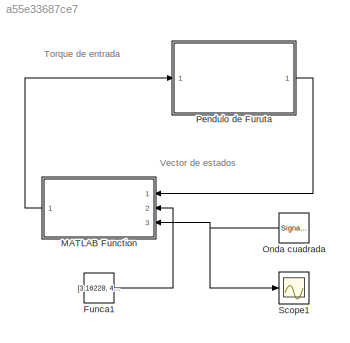
MODEL slx_a55e33687ce7
KIND model
CONFIG AbsTol = auto
CONFIG EnableMultiTasking = on
CONFIG FixedStep = auto
CONFIG MaxStep = auto
CONFIG MinStep = auto
CONFIG RelTol = 1e-3
CONFIG SampleTimeConstraint = Unconstrained
CONFIG SolverName = VariableStepAuto
CONFIG StartTime = 0.0
CONFIG StopTime = 100
BLOCK [Constant] Funca1
  Value = [3.16228, 4.03161, 148.669, 24.7138, 193.849, 25.8739]
  VectorParams1D = off
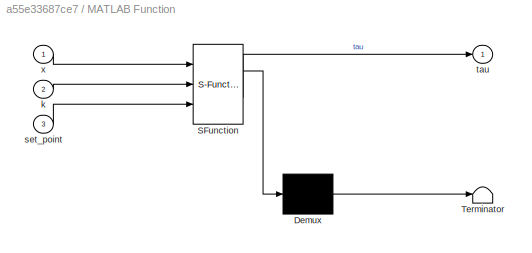
BLOCK [SubSystem] MATLAB Function
  ErrorFcn = Stateflow.Translate.translate
  PermitHierarchicalResolution = ExplicitOnly
  Ports = [3, 1]
  RequestExecContextInheritance = off
  SFBlockType = MATLAB Function
  TreatAsAtomicUnit = on
BLOCK [Demux] MATLAB Function/ Demux 
  Outputs = 1
  Ports = [1, 1]
BLOCK [S-Function] MATLAB Function/ SFunction 
  EnableBusSupport = on
  FunctionName = sf_sfun
  PortCounts = [3 2]
  Ports = [3, 2]
  SFcnIsStateOwnerBlock = off
  SFunctionDeploymentMode = off
  Tag = Stateflow S-Function 2
BLOCK [Terminator] MATLAB Function/ Terminator 
BLOCK [Inport] MATLAB Function/k
  Port = 2
BLOCK [Inport] MATLAB Function/set_point
  Port = 3
BLOCK [Outport] MATLAB Function/tau
BLOCK [Inport] MATLAB Function/x
BLOCK [SignalGenerator] Onda cuadrada
  Amplitude = 45
  Frequency = 0.2
  Ports = [0, 1]
  Units = rad/sec
  WaveForm = square
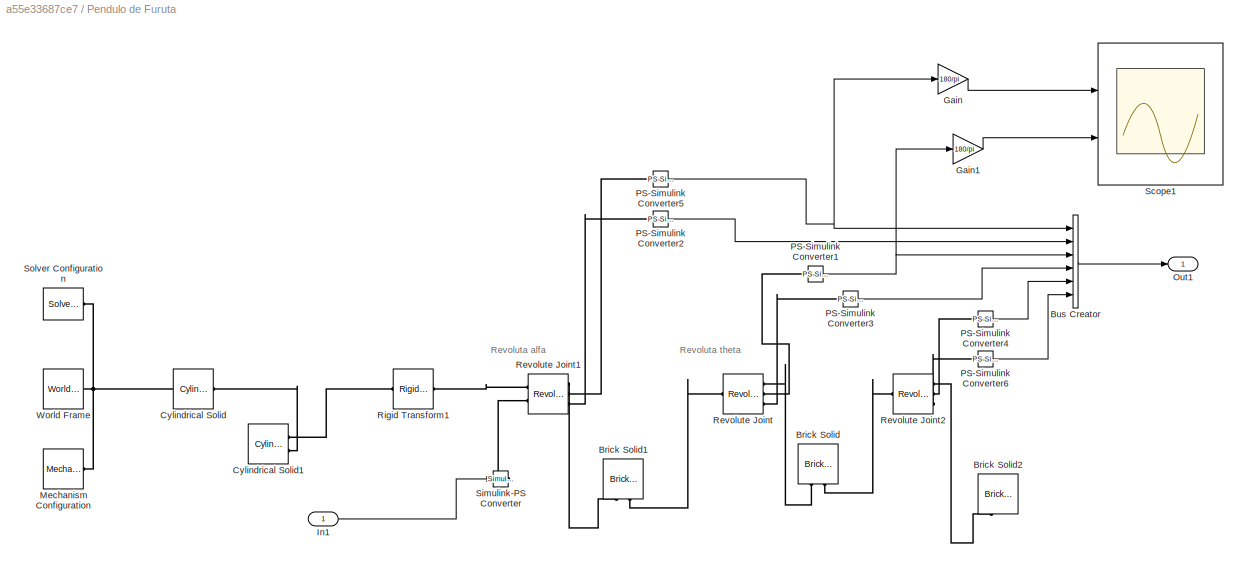
BLOCK [SubSystem] Pendulo de Furuta
  Ports = [1, 1]
  RequestExecContextInheritance = off
BLOCK [Reference] Pendulo de Furuta/Brick Solid  REF=sm_lib/Body Elements/Brick Solid
  Ports = [0, 0, 0, 0, 0, 2, 1]
  SourceBlock = sm_lib/Body Elements/Brick Solid
  SourceProductBaseCode = MS
  SourceType = Brick Solid
BLOCK [Reference] Pendulo de Furuta/Brick Solid1  REF=sm_lib/Body Elements/Brick Solid
  Ports = [0, 0, 0, 0, 0, 2, 1]
  SourceBlock = sm_lib/Body Elements/Brick Solid
  SourceProductBaseCode = MS
  SourceType = Brick Solid
BLOCK [Reference] Pendulo de Furuta/Brick Solid2  REF=sm_lib/Body Elements/Brick Solid
  Ports = [0, 0, 0, 0, 0, 2, 1]
  SourceBlock = sm_lib/Body Elements/Brick Solid
  SourceProductBaseCode = MS
  SourceType = Brick Solid
BLOCK [BusCreator] Pendulo de Furuta/Bus Creator
  DisplayOption = bar
  InheritFromInputs = on
  Inputs = 6
  Ports = [6, 1]
BLOCK [Reference] Pendulo de Furuta/Cylindrical Solid  REF=sm_lib/Body Elements/Cylindrical Solid
  Ports = [0, 0, 0, 0, 0, 1, 1]
  SourceBlock = sm_lib/Body Elements/Cylindrical Solid
  SourceProductBaseCode = MS
  SourceType = Cylindrical Solid
BLOCK [Reference] Pendulo de Furuta/Cylindrical Solid1  REF=sm_lib/Body Elements/Cylindrical Solid
  Ports = [0, 0, 0, 0, 0, 2, 1]
  SourceBlock = sm_lib/Body Elements/Cylindrical Solid
  SourceProductBaseCode = MS
  SourceType = Cylindrical Solid
BLOCK [Gain] Pendulo de Furuta/Gain
  Gain = 180/pi
BLOCK [Gain] Pendulo de Furuta/Gain1
  Gain = 180/pi
BLOCK [Inport] Pendulo de Furuta/In1
BLOCK [Reference] Pendulo de Furuta/Mechanism Configuration  REF=sm_lib/Utilities/Mechanism
Configuration
  Ports = [0, 0, 0, 0, 0, 0, 1]
  SourceBlock = sm_lib/Utilities/Mechanism\nConfiguration
  SourceProductBaseCode = MS
  SourceType = Mechanism\nConfiguration
BLOCK [Outport] Pendulo de Furuta/Out1
BLOCK [Reference] Pendulo de Furuta/PS-Simulink Converter1  REF=nesl_utility/PS-Simulink
Converter
  Ports = [0, 1, 0, 0, 0, 1]
  SourceBlock = nesl_utility/PS-Simulink\nConverter
  SourceProductBaseCode = PW,SS
  SourceType = PS-Simulink\nConverter
BLOCK [Reference] Pendulo de Furuta/PS-Simulink Converter2  REF=nesl_utility/PS-Simulink
Converter
  Ports = [0, 1, 0, 0, 0, 1]
  SourceBlock = nesl_utility/PS-Simulink\nConverter
  SourceProductBaseCode = PW,SS
  SourceType = PS-Simulink\nConverter
BLOCK [Reference] Pendulo de Furuta/PS-Simulink Converter3  REF=nesl_utility/PS-Simulink
Converter
  Ports = [0, 1, 0, 0, 0, 1]
  SourceBlock = nesl_utility/PS-Simulink\nConverter
  SourceProductBaseCode = PW,SS
  SourceType = PS-Simulink\nConverter
BLOCK [Reference] Pendulo de Furuta/PS-Simulink Converter4  REF=nesl_utility/PS-Simulink
Converter
  Ports = [0, 1, 0, 0, 0, 1]
  SourceBlock = nesl_utility/PS-Simulink\nConverter
  SourceProductBaseCode = PW,SS
  SourceType = PS-Simulink\nConverter
BLOCK [Reference] Pendulo de Furuta/PS-Simulink Converter5  REF=nesl_utility/PS-Simulink
Converter
  Ports = [0, 1, 0, 0, 0, 1]
  SourceBlock = nesl_utility/PS-Simulink\nConverter
  SourceProductBaseCode = PW,SS
  SourceType = PS-Simulink\nConverter
BLOCK [Reference] Pendulo de Furuta/PS-Simulink Converter6  REF=nesl_utility/PS-Simulink
Converter
  Ports = [0, 1, 0, 0, 0, 1]
  SourceBlock = nesl_utility/PS-Simulink\nConverter
  SourceProductBaseCode = PW,SS
  SourceType = PS-Simulink\nConverter
BLOCK [Reference] Pendulo de Furuta/Revolute Joint  REF=sm_lib/Joints/Revolute Joint
  Ports = [0, 0, 0, 0, 0, 1, 3]
  SourceBlock = sm_lib/Joints/Revolute Joint
  SourceProductBaseCode = MS
  SourceType = Revolute Joint
BLOCK [Reference] Pendulo de Furuta/Revolute Joint1  REF=sm_lib/Joints/Revolute Joint
  Ports = [0, 0, 0, 0, 0, 2, 3]
  SourceBlock = sm_lib/Joints/Revolute Joint
  SourceProductBaseCode = MS
  SourceType = Revolute Joint
BLOCK [Reference] Pendulo de Furuta/Revolute Joint2  REF=sm_lib/Joints/Revolute Joint
  Ports = [0, 0, 0, 0, 0, 1, 3]
  SourceBlock = sm_lib/Joints/Revolute Joint
  SourceProductBaseCode = MS
  SourceType = Revolute Joint
BLOCK [Reference] Pendulo de Furuta/Rigid Transform1  REF=sm_lib/Frames and
Transforms/Rigid
Transform
  Ports = [0, 0, 0, 0, 0, 1, 1]
  SourceBlock = sm_lib/Frames and\nTransforms/Rigid\nTransform
  SourceProductBaseCode = MS
  SourceType = Rigid\nTransform
BLOCK [Scope] Pendulo de Furuta/Scope1
  Floating = off
  NumInputPorts = 2
  Ports = [2]
  ScopeSpecificationString = Simulink.scopes.TimeScopeBlockCfg('CurrentConfiguration', extmgr.ConfigurationSet(extmgr.Configuration('Core','General UI',true),extmgr.Configuration('Core','Source UI',true),extmgr.Configuration('Sources','WiredSimulink',true,'DataLoggingVariableName','ScopeData2'),extmgr.Configuration('Visuals','Time Domain',true,'SerializedDisplays',{struct('MinYLimReal','-68.85103','MaxYLimReal','68.85101','YL...<+1866ch>
BLOCK [Reference] Pendulo de Furuta/Simulink-PS Converter  REF=nesl_utility/Simulink-PS
Converter
  Ports = [1, 0, 0, 0, 0, 0, 1]
  SourceBlock = nesl_utility/Simulink-PS\nConverter
  SourceProductBaseCode = PW,SS
  SourceType = Simulink-PS\nConverter
BLOCK [Reference] Pendulo de Furuta/Solver Configuration  REF=nesl_utility/Solver
Configuration
  Ports = [0, 0, 0, 0, 0, 0, 1]
  SourceBlock = nesl_utility/Solver\nConfiguration
  SourceProductBaseCode = PW,SS
  SourceType = Solver\nConfiguration
BLOCK [Reference] Pendulo de Furuta/World Frame  REF=sm_lib/Frames and
Transforms/World Frame
  Ports = [0, 0, 0, 0, 0, 0, 1]
  SourceBlock = sm_lib/Frames and\nTransforms/World Frame
  SourceProductBaseCode = MS
  SourceType = World Frame
BLOCK [Scope] Scope1
  Floating = off
  NumInputPorts = 1
  Ports = [1]
  ScopeSpecificationString = Simulink.scopes.TimeScopeBlockCfg('CurrentConfiguration', extmgr.ConfigurationSet(extmgr.Configuration('Core','General UI',true),extmgr.Configuration('Core','Source UI',true),extmgr.Configuration('Sources','WiredSimulink',true,'DataLoggingVariableName','ScopeData1'),extmgr.Configuration('Visuals','Time Domain',true,'SerializedDisplays',{struct('MinYLimReal','-56.25','MaxYLimReal','56.25','YLabelRe...<+1360ch>
ANNOTATION (root): Torque de entrada
ANNOTATION (root): Vector de estados
ANNOTATION Pendulo de Furuta: Revoluta alfa
ANNOTATION Pendulo de Furuta: Revoluta theta
LINE Funca1:1 -> MATLAB Function:2
LINE MATLAB Function:1 -> Pendulo de Furuta:1
NET Onda cuadrada:1 -> MATLAB Function:3, Scope1:1
LINE Pendulo de Furuta/Bus Creator:1 -> Pendulo de Furuta/Out1:1
LINE Pendulo de Furuta/Gain1:1 -> Pendulo de Furuta/Scope1:2
LINE Pendulo de Furuta/Gain:1 -> Pendulo de Furuta/Scope1:1
LINE Pendulo de Furuta/In1:1 -> Pendulo de Furuta/Simulink-PS Converter:1
NET Pendulo de Furuta/PS-Simulink Converter1:1 -> Pendulo de Furuta/Bus Creator:3, Pendulo de Furuta/Gain1:1
LINE Pendulo de Furuta/PS-Simulink Converter2:1 -> Pendulo de Furuta/Bus Creator:2
LINE Pendulo de Furuta/PS-Simulink Converter3:1 -> Pendulo de Furuta/Bus Creator:4
LINE Pendulo de Furuta/PS-Simulink Converter4:1 -> Pendulo de Furuta/Bus Creator:5
NET Pendulo de Furuta/PS-Simulink Converter5:1 -> Pendulo de Furuta/Bus Creator:1, Pendulo de Furuta/Gain:1
LINE Pendulo de Furuta/PS-Simulink Converter6:1 -> Pendulo de Furuta/Bus Creator:6
LINE Pendulo de Furuta:1 -> MATLAB Function:1
PLINE Pendulo de Furuta/Brick Solid1:LConn1 -- Pendulo de Furuta/Revolute Joint1:RConn1
PLINE Pendulo de Furuta/Brick Solid1:LConn2 -- Pendulo de Furuta/Revolute Joint:LConn1
PLINE Pendulo de Furuta/Brick Solid2:LConn1 -- Pendulo de Furuta/Revolute Joint2:RConn1
PLINE Pendulo de Furuta/Brick Solid:LConn1 -- Pendulo de Furuta/Revolute Joint:RConn1
PLINE Pendulo de Furuta/Brick Solid:LConn2 -- Pendulo de Furuta/Revolute Joint2:LConn1
PLINE Pendulo de Furuta/Cylindrical Solid1:LConn1 -- Pendulo de Furuta/Rigid Transform1:LConn1
PLINE Pendulo de Furuta/Cylindrical Solid1:LConn2 -- Pendulo de Furuta/Cylindrical Solid:LConn1
PNET net1: Pendulo de Furuta/Cylindrical Solid:RConn1 -- Pendulo de Furuta/Mechanism Configuration:RConn1 -- Pendulo de Furuta/Solver Configuration:RConn1 -- Pendulo de Furuta/World Frame:RConn1
PLINE Pendulo de Furuta/PS-Simulink Converter1:LConn1 -- Pendulo de Furuta/Revolute Joint:RConn2
PLINE Pendulo de Furuta/PS-Simulink Converter2:LConn1 -- Pendulo de Furuta/Revolute Joint1:RConn3
PLINE Pendulo de Furuta/PS-Simulink Converter3:LConn1 -- Pendulo de Furuta/Revolute Joint:RConn3
PLINE Pendulo de Furuta/PS-Simulink Converter4:LConn1 -- Pendulo de Furuta/Revolute Joint2:RConn2
PLINE Pendulo de Furuta/PS-Simulink Converter5:LConn1 -- Pendulo de Furuta/Revolute Joint1:RConn2
PLINE Pendulo de Furuta/PS-Simulink Converter6:LConn1 -- Pendulo de Furuta/Revolute Joint2:RConn3
PLINE Pendulo de Furuta/Revolute Joint1:LConn1 -- Pendulo de Furuta/Rigid Transform1:RConn1
PLINE Pendulo de Furuta/Revolute Joint1:LConn2 -- Pendulo de Furuta/Simulink-PS Converter:RConn1
note: NET lines group one-source signal fan-out (src -> all destinations, sorted); 1:1 wires keep LINE; PNET lines group multi-terminal physical nets as a canonical sorted terminal list (undirected conserving connections); 2-terminal nets keep the pairwise PLINE form
CHART MATLAB Function states=1 transitions=1
  STATE_LABEL 'eML_blk_kernel()'
  STATE_LABEL 'SCRIPT:\nfunction tau = fcn(x,k,set_point)\nx(1)=x(1)-set_point*(pi/180);\ntau=-k*x;\n'
CHART  states=0 transitions=0
